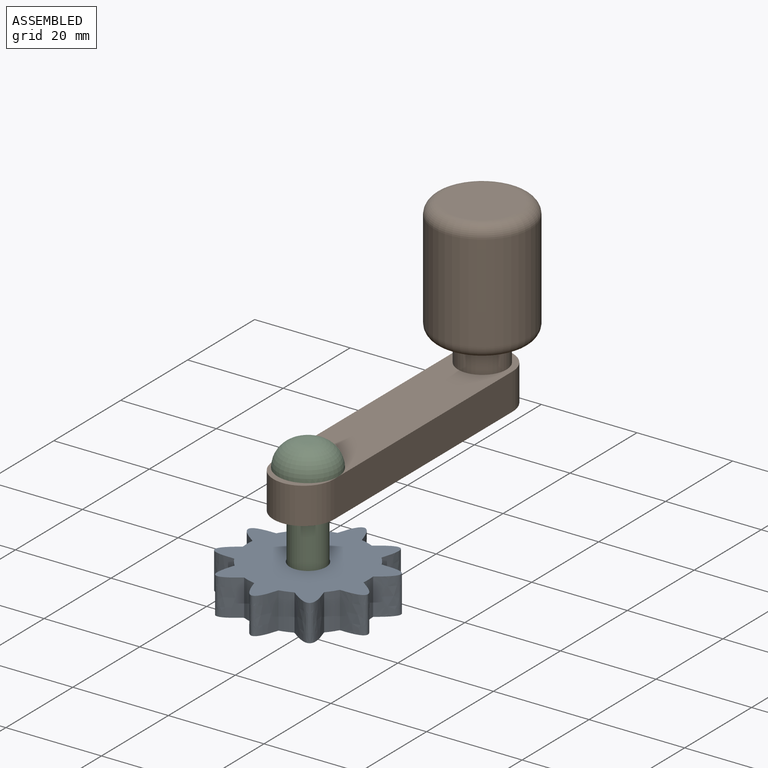
[diagram: assembled view]
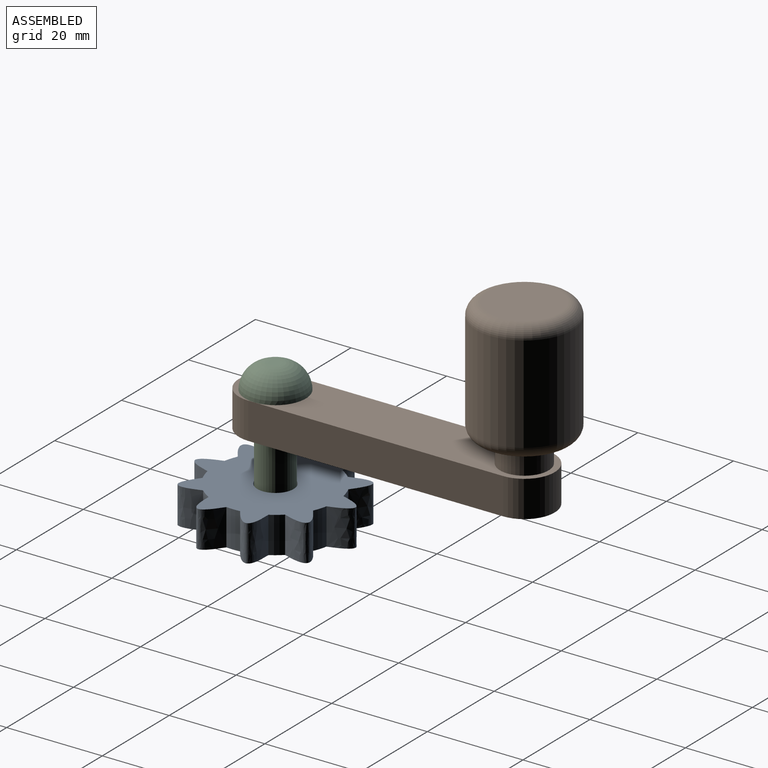
[diagram: assembled view, second angle]
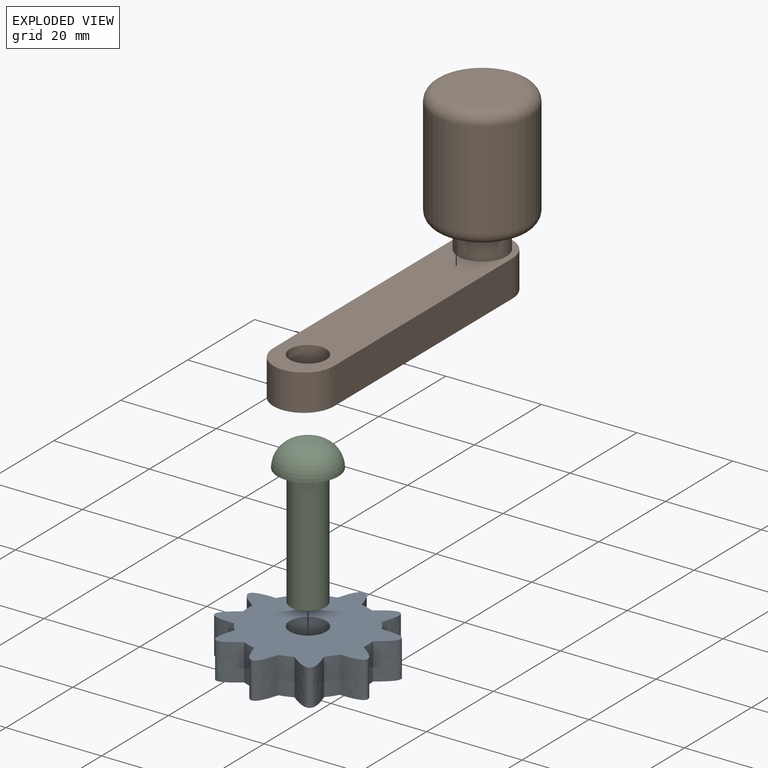
[diagram: exploded view]
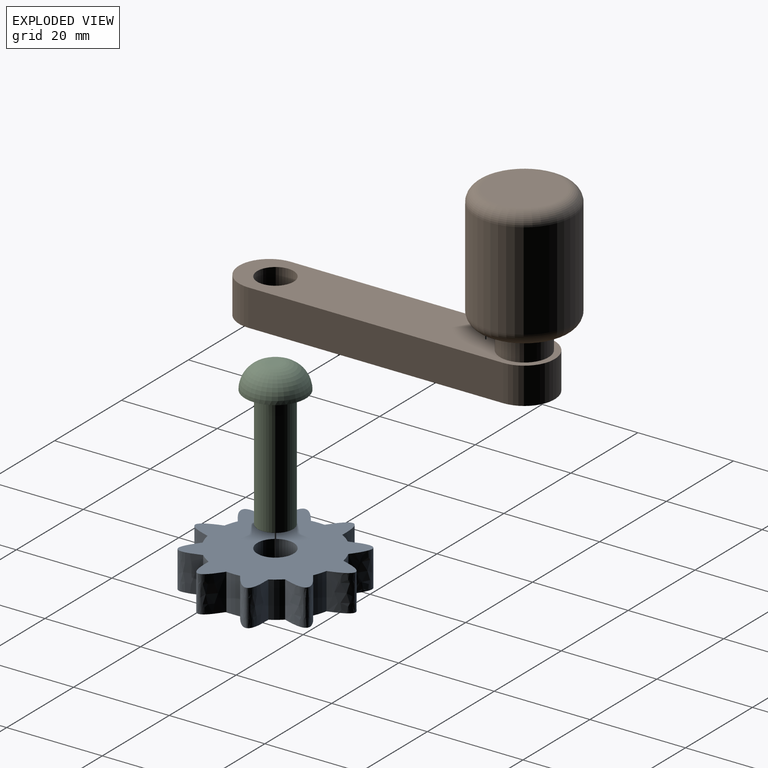
[diagram: exploded view, second angle]
ASSEMBLY  parts=3 mates=2
PART A: 23 faces, bbox 35.2x36.8x7.6 mm
  f0: extruded ~7.62x4.95mm, area 80mm2, adj f1,f20,f21,f22
  f1: cylinder r=12.7mm len=7.62mm, axis (0,0,-1), area 21.8mm2, adj f0,f2,f21,f22
  f2: extruded ~7.62x4.95mm, area 80mm2, adj f1,f3,f21,f22
  f3: cylinder r=12.7mm len=7.62mm, axis (0,0,-1), area 21.8mm2, adj f2,f4,f21,f22
  f4: extruded ~7.62x5.16mm, area 80mm2, adj f3,f5,f21,f22
  f5: cylinder r=12.7mm len=7.62mm, axis (0,0,-1), area 21.8mm2, adj f4,f6,f21,f22
  f6: extruded ~7.62x5.08mm, area 80mm2, adj f5,f7,f21,f22
  f7: cylinder r=12.7mm len=7.62mm, axis (0,0,-1), area 21.8mm2, adj f6,f8,f21,f22
  f8: extruded ~7.62x5.16mm, area 80mm2, adj f7,f9,f21,f22
  f9: cylinder r=12.7mm len=7.62mm, axis (0,0,-1), area 21.8mm2, adj f8,f10,f21,f22
  f10: extruded ~7.62x4.95mm, area 80mm2, adj f9,f11,f21,f22
  f11: cylinder r=12.7mm len=7.62mm, axis (0,0,-1), area 21.8mm2, adj f10,f12,f21,f22
  f12: extruded ~7.62x4.95mm, area 80mm2, adj f11,f13,f21,f22
  f13: cylinder r=12.7mm len=7.62mm, axis (0,0,-1), area 21.8mm2, adj f12,f14,f21,f22
  f14: extruded ~7.62x5.16mm, area 80mm2, adj f13,f15,f21,f22
  f15: cylinder r=12.7mm len=7.62mm, axis (0,0,-1), area 21.8mm2, adj f14,f16,f21,f22
  f16: extruded ~7.62x5.08mm, area 80mm2, adj f15,f17,f21,f22
  f17: cylinder r=12.7mm len=7.62mm, axis (0,0,-1), area 21.8mm2, adj f16,f18,f21,f22
  f18: extruded ~7.62x5.16mm, area 80mm2, adj f17,f20,f21,f22
  f19: cylinder r=3.81mm len=7.62mm, axis (0,0,-1), area 182.4mm2, adj f21,f22
  f20: cylinder r=12.7mm len=7.62mm, axis (0,0,-1), area 21.8mm2, adj f0,f18,f21,f22
  f21: plane 36.83x35.19mm, normal (0,0,1), area 599.5mm2, adj f0,f1,f2,f3,f4,f5,f6,f7
  f22: plane 36.83x35.19mm, normal (0,0,-1), area 599.5mm2, adj f0,f1,f2,f3,f4,f5,f6,f7
PART B: 13 faces, bbox 22x70.7x38.1 mm
  f0: plane 53.34x7.62mm, normal (-1,0,0), area 406.5mm2, adj f1,f3,f4,f5
  f1: cylinder r=6.35mm len=12.7mm, axis (0,0,-1), area 152mm2, adj f0,f2,f4,f5
  f2: plane 53.34x7.62mm, normal (1,0,0), area 406.5mm2, adj f1,f3,f4,f5
  f3: cylinder r=6.35mm len=12.7mm, axis (0,0,-1), area 152mm2, adj f0,f2,f4,f5
  f4: plane 66.04x12.7mm, normal (0,0,1), area 677.4mm2, adj f0,f1,f2,f3,f6,f7
  f5: plane 66.04x12.7mm, normal (0,0,-1), area 758.5mm2, adj f0,f1,f2,f3,f6
  f6: cylinder r=3.81mm len=7.62mm, axis (0,0,1), area 182.4mm2, adj f4,f5
  f7: cylinder r=5.08mm len=10.16mm, axis (0,0,-1), area 162.1mm2, adj f4,f10
  f8: cylinder r=10.16mm len=20.32mm, axis (0,0,-1), area 1297.2mm2, adj f11,f12
  f9: plane 15.24x15.24mm, normal (0,0,1), area 182.4mm2, adj f12
  f10: plane 15.24x15.24mm, normal (0,0,-1), area 101.3mm2, adj f7,f11
  f11: torus R=7.62mm, axis (0,0,1), area 231.6mm2, adj f8,f10
  f12: torus R=7.62mm, axis (0,0,1), area 231.6mm2, adj f8,f9
PART C: 5 faces, bbox 12.7x12.7x30.5 mm
  f0: cylinder r=3.68mm len=25.4mm, axis (0,0,-1), area 587.8mm2, adj f1,f3
  f1: plane 7.37x7.37mm, normal (0,0,-1), area 42.6mm2, adj f0
  f2: plane 2.54x2.54mm, normal (0,0,1), area 5.1mm2, adj f4
  f3: plane 12.7x12.7mm, normal (0,0,-1), area 84.1mm2, adj f0,f4
  f4: torus R=1.27mm, axis (0,0,1), area 225.8mm2, adj f2,f3
PLACE A t=(-9.9,-12.7,-6.35)mm
PLACE B t=(-9.9,-12.7,11.43)mm
PLACE C t=(-9.9,-12.7,-6.35)mm
MATE revolute A.f1 <-> C.f0  axis (0,0,-1) through (-9.9,-12.7,-6.35)mm
MATE fastened C.f4 <-> B.f6  axis (0,0,-1) through (-9.9,-12.7,19.05)mm
